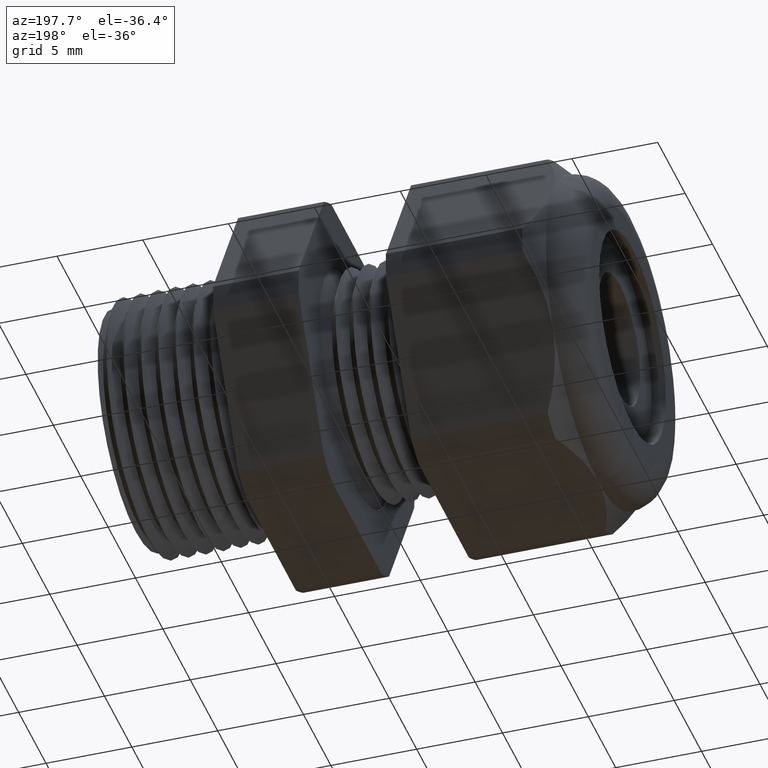
[diagram: clean part render]
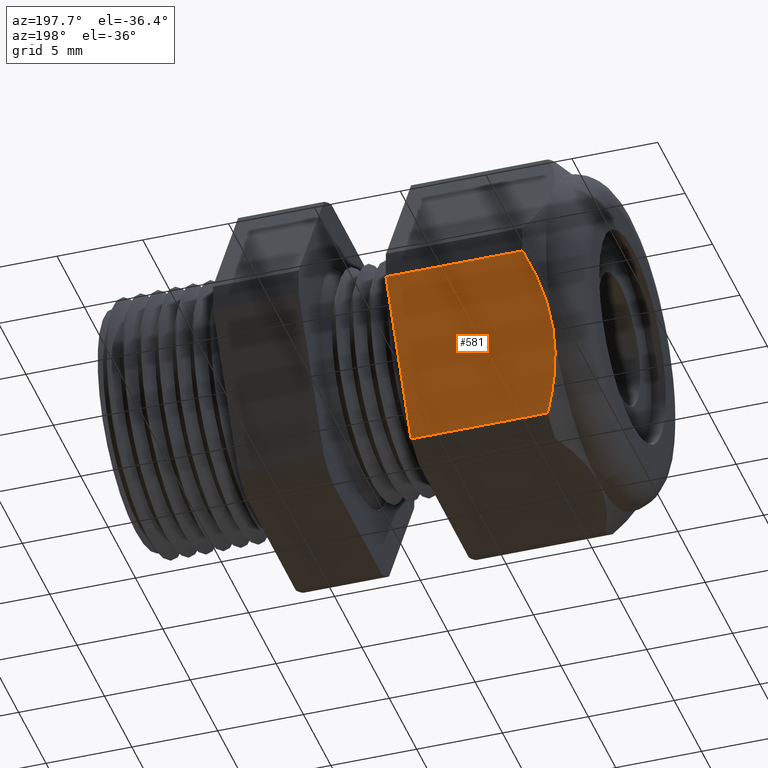
[diagram: same view with one face highlighted and labeled with its STEP entity id]
A machine part, auxiliary view. The second image highlights one B-rep face of the part: STEP entity #581.
In plain terms, the highlighted planar face has unit normal (0, 0.866, -0.5).
Its self-contained STEP definition (entity closure, byte-faithful):
#157 = VERTEX_POINT ( 'NONE', #2128 ) ;
#568 = VERTEX_POINT ( 'NONE', #2907 ) ;
#569 = ORIENTED_EDGE ( 'NONE', *, *, #570, .T. ) ;
#570 = EDGE_CURVE ( 'NONE', #568, #157, #2906, .T. ) ;
#581 = ADVANCED_FACE ( 'NONE', ( #2943 ), #2939, .T. ) ;
#582 = EDGE_LOOP ( 'NONE', ( #583, #569, #641, #644, #653 ) ) ;
#583 = ORIENTED_EDGE ( 'NONE', *, *, #584, .T. ) ;
#584 = EDGE_CURVE ( 'NONE', #585, #568, #2934, .T. ) ;
#585 = VERTEX_POINT ( 'NONE', #2930 ) ;
#641 = ORIENTED_EDGE ( 'NONE', *, *, #642, .T. ) ;
#642 = EDGE_CURVE ( 'NONE', #157, #643, #3079, .T. ) ;
#643 = VERTEX_POINT ( 'NONE', #3078 ) ;
#644 = ORIENTED_EDGE ( 'NONE', *, *, #645, .F. ) ;
#645 = EDGE_CURVE ( 'NONE', #646, #643, #3071, .T. ) ;
#646 = VERTEX_POINT ( 'NONE', #3067 ) ;
#653 = ORIENTED_EDGE ( 'NONE', *, *, #654, .F. ) ;
#654 = EDGE_CURVE ( 'NONE', #585, #646, #3055, .T. ) ;
#2128 = CARTESIAN_POINT ( 'NONE',  ( -1.061259842519684900, 0.3247595264191643900, -0.1874999999999998900 ) ) ;
#2897 = CARTESIAN_POINT ( 'NONE',  ( -1.061259842519684900, 0.3247595264191643900, -0.1874999999999998900 ) ) ;
#2898 = CARTESIAN_POINT ( 'NONE',  ( -1.061259842519684400, 0.3169392765875837000, -0.2010450700361805500 ) ) ;
#2899 = CARTESIAN_POINT ( 'NONE',  ( -1.060255793581166700, 0.3090355397383389200, -0.2147347438287265900 ) ) ;
#2900 = CARTESIAN_POINT ( 'NONE',  ( -1.056422317636959800, 0.2935887246993248400, -0.2414894122914182400 ) ) ;
#2901 = CARTESIAN_POINT ( 'NONE',  ( -1.053600508221610400, 0.2859780998530067600, -0.2546714012025869700 ) ) ;
#2902 = CARTESIAN_POINT ( 'NONE',  ( -1.042794409625180000, 0.2634379006963010700, -0.2937121713547226600 ) ) ;
#2903 = CARTESIAN_POINT ( 'NONE',  ( -1.032483809490952500, 0.2487982124163729500, -0.3190688552625287100 ) ) ;
#2904 = CARTESIAN_POINT ( 'NONE',  ( -1.020009842519684600, 0.2344281053908207300, -0.3439586107409877100 ) ) ;
#2906 = B_SPLINE_CURVE_WITH_KNOTS ( 'NONE', 3,
 ( #2904, #2903, #2902, #2901, #2900, #2899, #2898, #2897 ),
 .UNSPECIFIED., .F., .F.,
 ( 4, 2, 2, 4 ),
 ( 2.483253706007067000E-007, 0.002355112334987623900, 0.003532544339796138600, 0.004709976344604651500 ),
 .UNSPECIFIED. ) ;
#2907 = CARTESIAN_POINT ( 'NONE',  ( -1.020009842519684600, 0.2344281053908207300, -0.3439586107409877100 ) ) ;
#2930 = CARTESIAN_POINT ( 'NONE',  ( -0.7069291338582672800, 0.2344281053908206800, -0.3439586107409877100 ) ) ;
#2931 = DIRECTION ( 'NONE',  ( -1.000000000000000000, 0.0000000000000000000, 0.0000000000000000000 ) ) ;
#2932 = VECTOR ( 'NONE', #2931, 39.37007874015748100 ) ;
#2933 = CARTESIAN_POINT ( 'NONE',  ( 0.0000000000000000000, 0.2344281053908206800, -0.3439586107409877100 ) ) ;
#2934 = LINE ( 'NONE', #2933, #2932 ) ;
#2935 = DIRECTION ( 'NONE',  ( 0.0000000000000000000, 0.4999999999999998300, 0.8660254037844388200 ) ) ;
#2936 = DIRECTION ( 'NONE',  ( 0.0000000000000000000, 0.8660254037844388200, -0.4999999999999998300 ) ) ;
#2937 = CARTESIAN_POINT ( 'NONE',  ( 0.0000000000000000000, 0.4150909474475088000, -0.03104138925901243900 ) ) ;
#2938 = AXIS2_PLACEMENT_3D ( 'NONE', #2937, #2936, #2935 ) ;
#2939 = PLANE ( 'NONE',  #2938 ) ;
#2943 = FACE_OUTER_BOUND ( 'NONE', #582, .T. ) ;
#3053 = VECTOR ( 'NONE', #3112, 39.37007874015748100 ) ;
#3054 = CARTESIAN_POINT ( 'NONE',  ( -0.7069291338582676100, 0.3922595264191647300, -0.07058657048910087200 ) ) ;
#3055 = LINE ( 'NONE', #3054, #3053 ) ;
#3067 = CARTESIAN_POINT ( 'NONE',  ( -0.7069291338582676100, 0.4150909474475088000, -0.03104138925901243900 ) ) ;
#3068 = DIRECTION ( 'NONE',  ( -1.000000000000000000, 0.0000000000000000000, 0.0000000000000000000 ) ) ;
#3069 = VECTOR ( 'NONE', #3068, 39.37007874015748100 ) ;
#3070 = CARTESIAN_POINT ( 'NONE',  ( 0.0000000000000000000, 0.4150909474475088000, -0.03104138925901243900 ) ) ;
#3071 = LINE ( 'NONE', #3070, #3069 ) ;
#3072 = CARTESIAN_POINT ( 'NONE',  ( -1.020009842519684900, 0.4150909474475088000, -0.03104138925901243900 ) ) ;
#3073 = CARTESIAN_POINT ( 'NONE',  ( -1.032499265138041400, 0.4007030353962317000, -0.05596198394665699600 ) ) ;
#3074 = CARTESIAN_POINT ( 'NONE',  ( -1.042955282991275400, 0.3858321107701057100, -0.08171918095463434600 ) ) ;
#3075 = CARTESIAN_POINT ( 'NONE',  ( -1.057313831997348100, 0.3557072427410923900, -0.1338969829521927100 ) ) ;
#3076 = CARTESIAN_POINT ( 'NONE',  ( -1.061259842519684200, 0.3403893008356696500, -0.1604284365997730400 ) ) ;
#3077 = CARTESIAN_POINT ( 'NONE',  ( -1.061259842519684900, 0.3247595264191643900, -0.1874999999999998900 ) ) ;
#3078 = CARTESIAN_POINT ( 'NONE',  ( -1.020009842519684900, 0.4150909474475088000, -0.03104138925901243900 ) ) ;
#3079 = B_SPLINE_CURVE_WITH_KNOTS ( 'NONE', 3,
 ( #3077, #3076, #3075, #3074, #3073, #3072 ),
 .UNSPECIFIED., .F., .F.,
 ( 4, 2, 4 ),
 ( 0.004709976344604651500, 0.007063225540252120200, 0.009416474735899588900 ),
 .UNSPECIFIED. ) ;
#3112 = DIRECTION ( 'NONE',  ( 0.0000000000000000000, 0.4999999999999998300, 0.8660254037844388200 ) ) ;